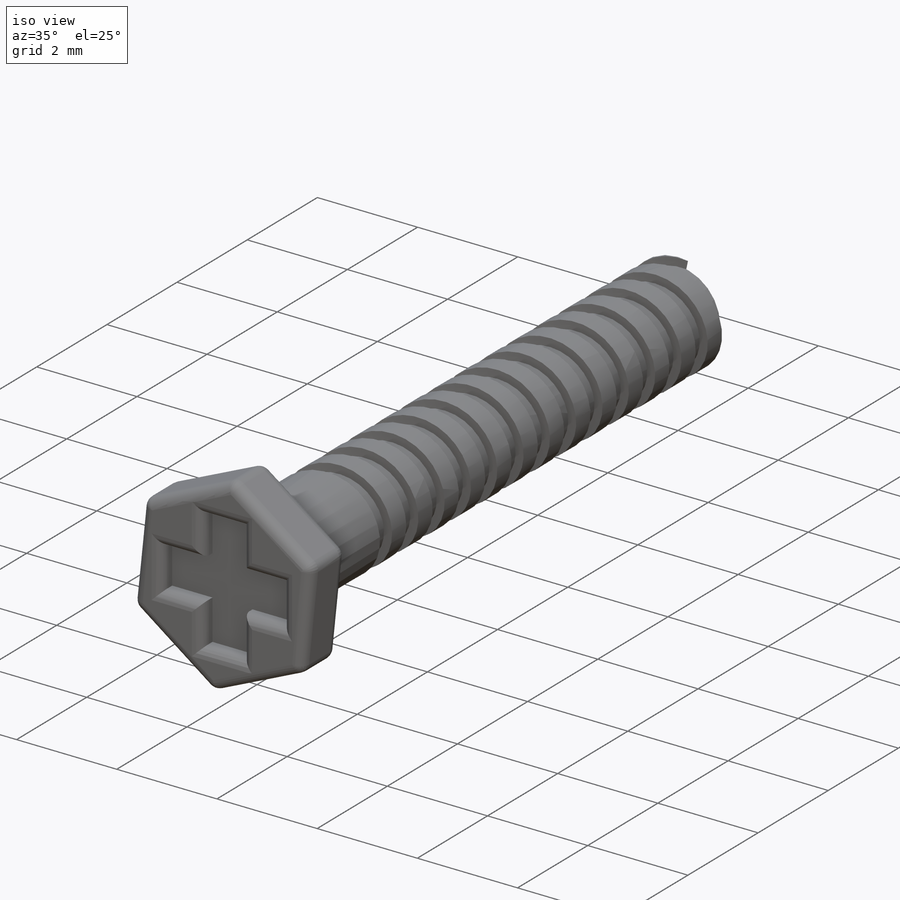
[diagram: iso view]
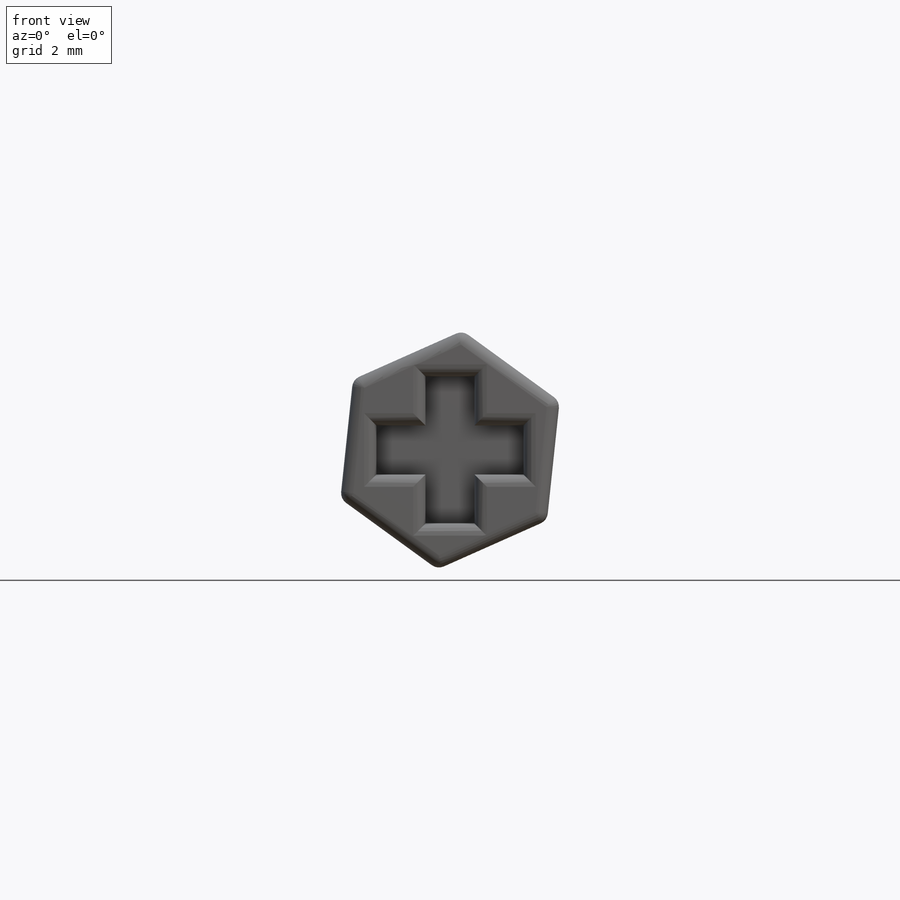
[diagram: front view]
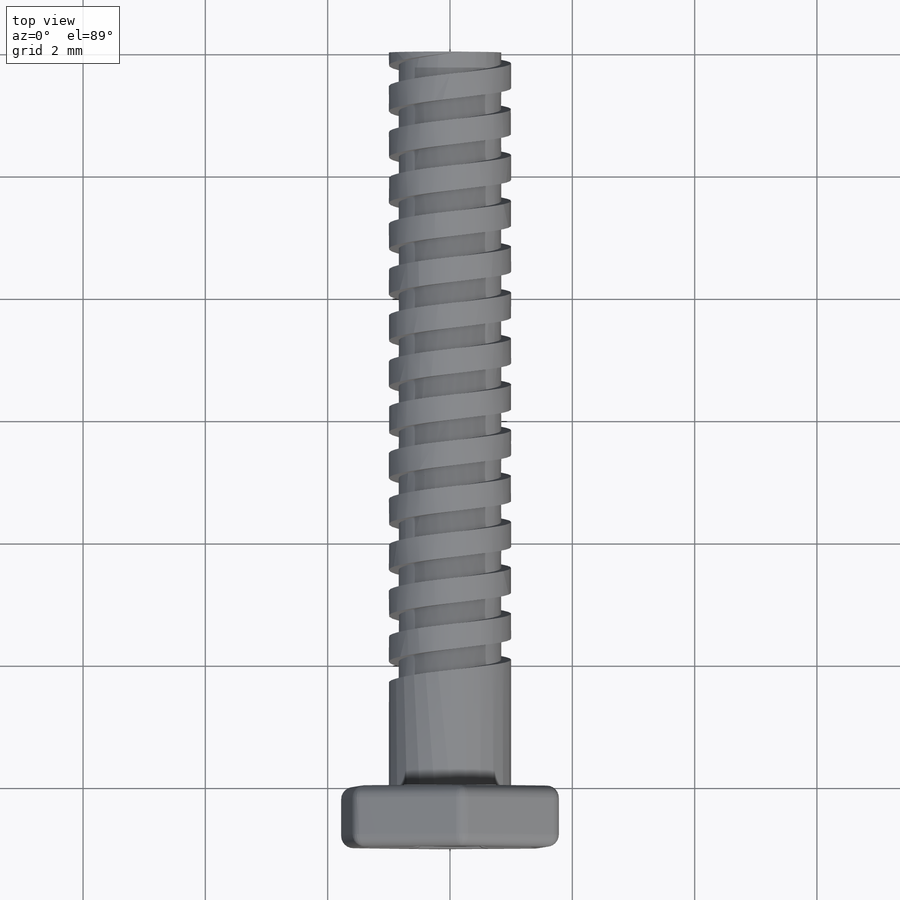
[diagram: top view]
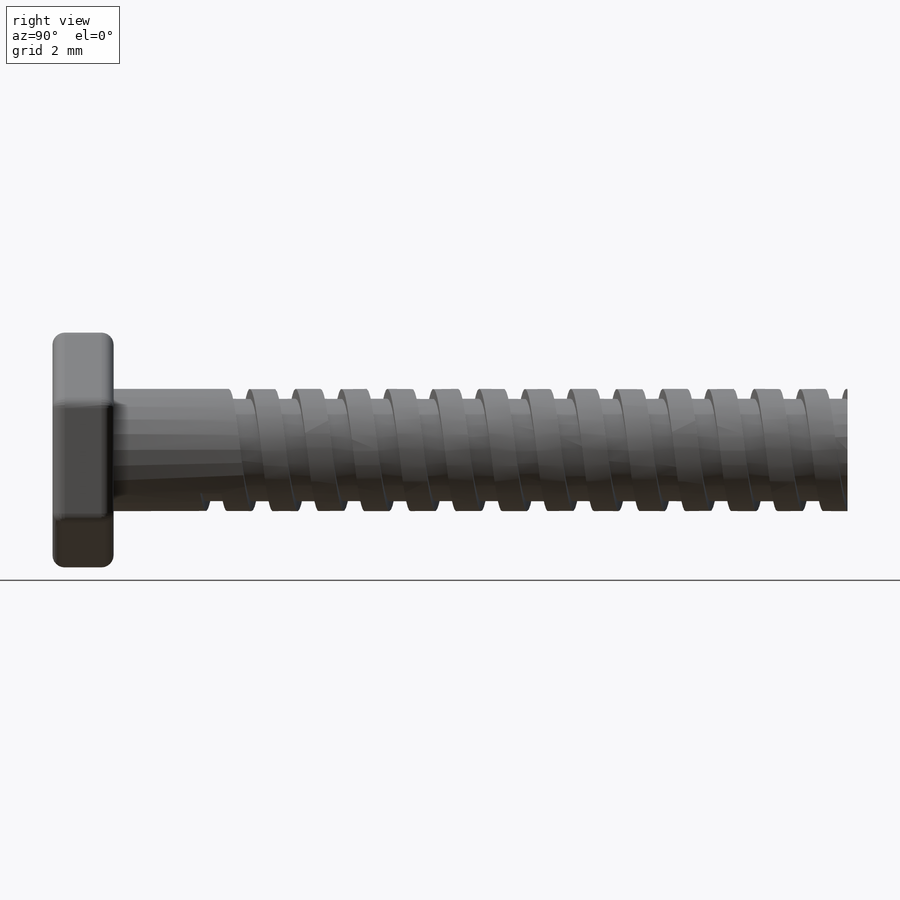
[diagram: right view]
SOLIDWORKS PART (.sldprt)
format: sldprt  version: not decoded by parser v0  size: 562,176 bytes
history: native  units: mm
features: sketch x6, extrude x2, fillet x2, material x1, helix x1, sweep x1, cut_extrude x1 (+13 scaffold rows collapsed)
feature tree (27):
  scaffold x13  (default folders/planes/origin — collapsed)
  material  "Chrome Stainless Steel"
  sketch  "Sketch2"  dims[D1=2.0mm]
  extrude  "Extrude2"  Depth=12mm
  sketch  "Sketch3"
  sketch  "Sketch5"
  helix  "Helix/Spiral2"  Pitch=14.0625mm
  sketch  "Sketch6"
  sweep  "Cut-Sweep2"
  sketch  "Sketch7"
  extrude  "Extrude3"  Depth=1mm
  sketch  "Sketch8"  dims[D1=0.8mm D2=0.8mm D3=0.8mm D4=0.8mm D5=0.8mm D6=0.8mm]
  cut_extrude  "Extrude4"  Depth=0.3mm
  fillet  "Fillet1"  Radius=0.2mm
  fillet  "Fillet2"  Radius=0.2mm
decode coverage: 8 of 13 modeling features carry decoded parameters
note: suppression state not decoded; provenance and decode notes live in map.json
